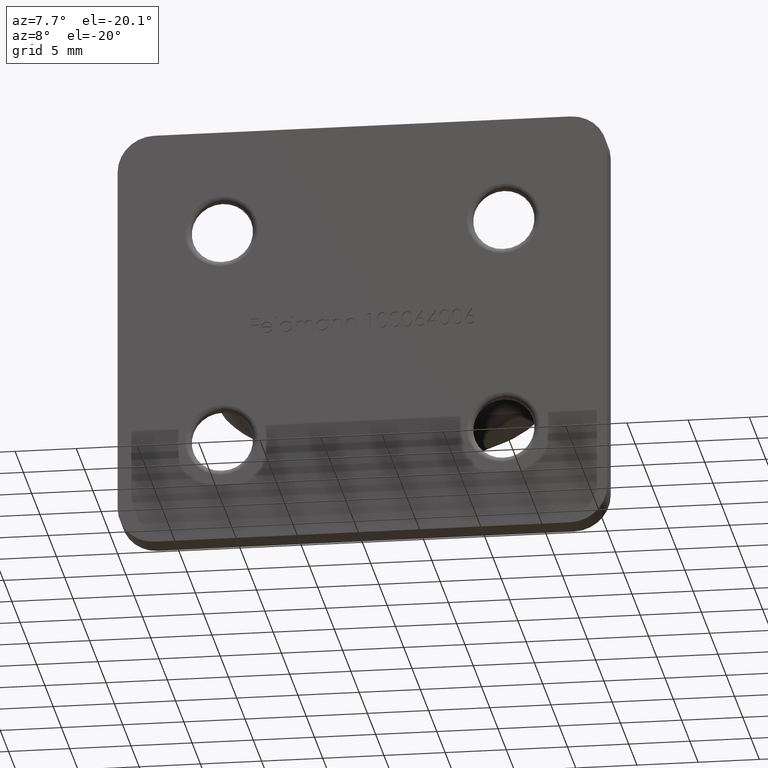
[diagram: clean part render]
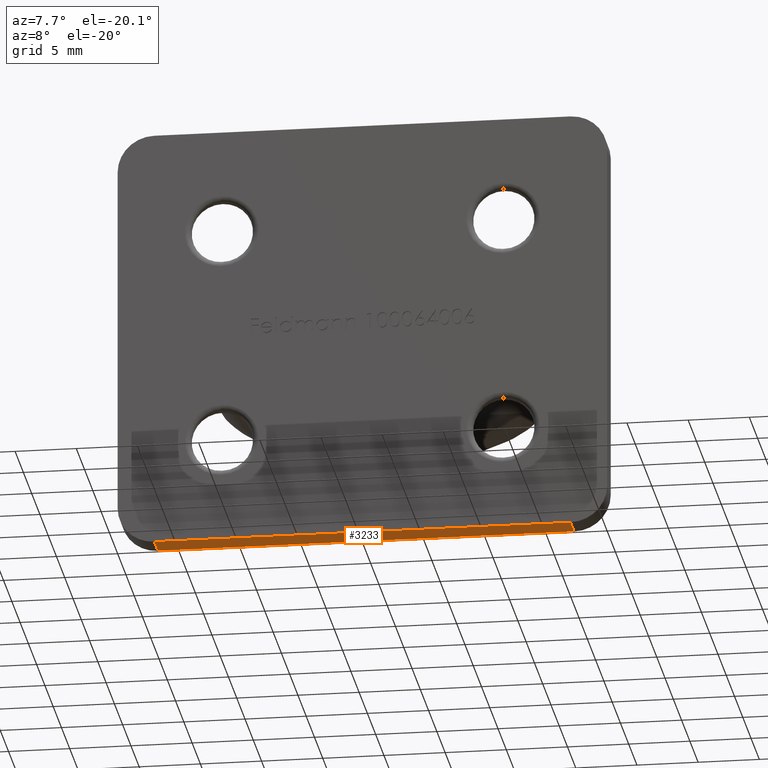
[diagram: same view with one face highlighted and labeled with its STEP entity id]
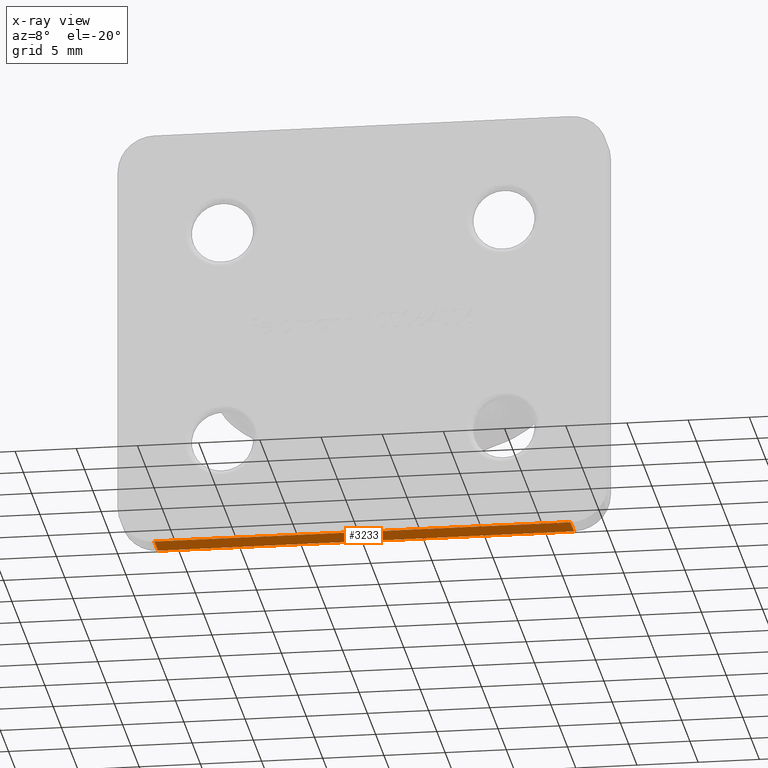
[diagram: x-ray of the same camera — body ghosted, the highlighted face saturated]
A machine part, auxiliary view. The second image highlights one B-rep face of the part: STEP entity #3233.
The next image is the same camera in x-ray: the body ghosted, the highlighted face saturated — about 0% of this face is hidden behind the body in this view.
In plain terms, the highlighted planar face has unit normal (0, -0, 1).
Its self-contained STEP definition (entity closure, byte-faithful):
#298 = ORIENTED_EDGE ( 'NONE', *, *, #10370, .T. ) ;
#722 = DIRECTION ( 'NONE',  ( 1.734723475976806800E-016, -0.0000000000000000000, 1.000000000000000000 ) ) ;
#882 = CARTESIAN_POINT ( 'NONE',  ( 16.99999999999999600, 2.200000000000000200, -17.50000000000000400 ) ) ;
#1115 = CARTESIAN_POINT ( 'NONE',  ( -17.00000000000000700, 0.0000000000000000000, -17.49999999999999600 ) ) ;
#1338 = AXIS2_PLACEMENT_3D ( 'NONE', #7426, #722, #1842 ) ;
#1462 = EDGE_CURVE ( 'NONE', #7697, #11639, #12733, .T. ) ;
#1842 = DIRECTION ( 'NONE',  ( 1.000000000000000000, 0.0000000000000000000, -1.734723475976806800E-016 ) ) ;
#3233 = ADVANCED_FACE ( 'NONE', ( #13758 ), #10885, .F. ) ;
#3285 = VERTEX_POINT ( 'NONE', #14488 ) ;
#3559 = CARTESIAN_POINT ( 'NONE',  ( 16.99999999999999600, 0.0000000000000000000, -17.50000000000000400 ) ) ;
#3869 = VECTOR ( 'NONE', #5880, 1000.000000000000000 ) ;
#4806 = EDGE_CURVE ( 'NONE', #3285, #11639, #11031, .T. ) ;
#5042 = VECTOR ( 'NONE', #8367, 1000.000000000000000 ) ;
#5567 = LINE ( 'NONE', #882, #14522 ) ;
#5574 = LINE ( 'NONE', #7349, #5042 ) ;
#5686 = ORIENTED_EDGE ( 'NONE', *, *, #1462, .T. ) ;
#5880 = DIRECTION ( 'NONE',  ( -1.000000000000000000, 0.0000000000000000000, 1.734723475976807100E-016 ) ) ;
#7082 = EDGE_CURVE ( 'NONE', #3285, #10602, #5567, .T. ) ;
#7349 = CARTESIAN_POINT ( 'NONE',  ( 19.99999999999999600, 0.0000000000000000000, -17.50000000000000400 ) ) ;
#7426 = CARTESIAN_POINT ( 'NONE',  ( 19.99999999999999600, 2.200000000000000200, -17.50000000000000400 ) ) ;
#7697 = VERTEX_POINT ( 'NONE', #1115 ) ;
#7753 = DIRECTION ( 'NONE',  ( -0.0000000000000000000, 1.000000000000000000, -0.0000000000000000000 ) ) ;
#8367 = DIRECTION ( 'NONE',  ( -1.000000000000000000, 0.0000000000000000000, 1.734723475976807100E-016 ) ) ;
#8508 = ORIENTED_EDGE ( 'NONE', *, *, #4806, .F. ) ;
#9297 = CARTESIAN_POINT ( 'NONE',  ( 19.99999999999999600, 2.200000000000000200, -17.50000000000000400 ) ) ;
#9674 = DIRECTION ( 'NONE',  ( 0.0000000000000000000, -1.000000000000000000, 0.0000000000000000000 ) ) ;
#10370 = EDGE_CURVE ( 'NONE', #10602, #7697, #5574, .T. ) ;
#10513 = CARTESIAN_POINT ( 'NONE',  ( -17.00000000000000700, 2.200000000000000200, -17.49999999999999600 ) ) ;
#10602 = VERTEX_POINT ( 'NONE', #3559 ) ;
#10885 = PLANE ( 'NONE',  #1338 ) ;
#11031 = LINE ( 'NONE', #9297, #3869 ) ;
#11639 = VERTEX_POINT ( 'NONE', #10513 ) ;
#12733 = LINE ( 'NONE', #13427, #13591 ) ;
#12815 = ORIENTED_EDGE ( 'NONE', *, *, #7082, .T. ) ;
#13187 = EDGE_LOOP ( 'NONE', ( #298, #5686, #8508, #12815 ) ) ;
#13427 = CARTESIAN_POINT ( 'NONE',  ( -17.00000000000000700, 2.200000000000000200, -17.49999999999999600 ) ) ;
#13591 = VECTOR ( 'NONE', #7753, 1000.000000000000000 ) ;
#13758 = FACE_OUTER_BOUND ( 'NONE', #13187, .T. ) ;
#14488 = CARTESIAN_POINT ( 'NONE',  ( 16.99999999999999600, 2.200000000000000200, -17.50000000000000400 ) ) ;
#14522 = VECTOR ( 'NONE', #9674, 1000.000000000000000 ) ;